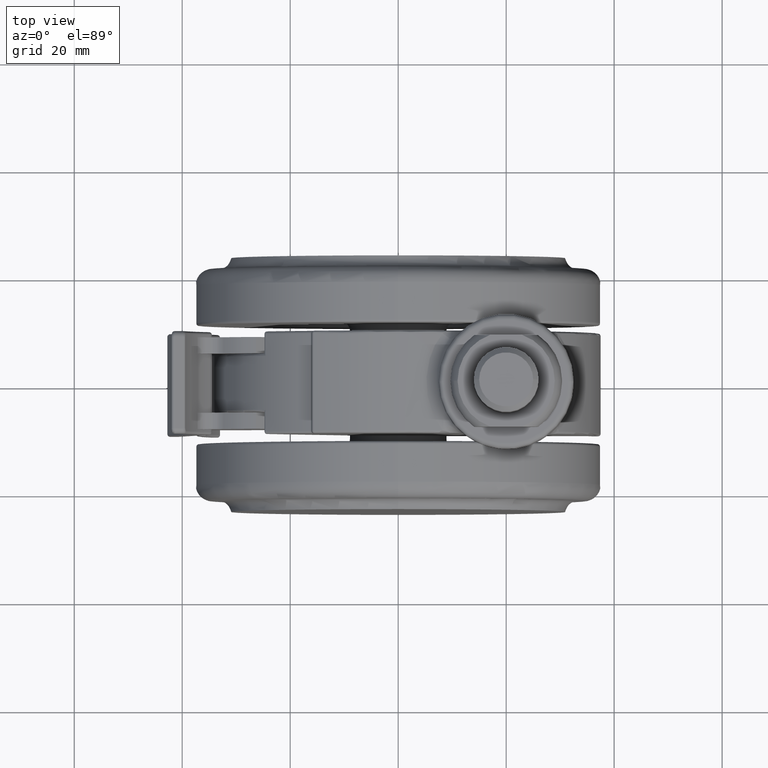
[diagram: clean part render]
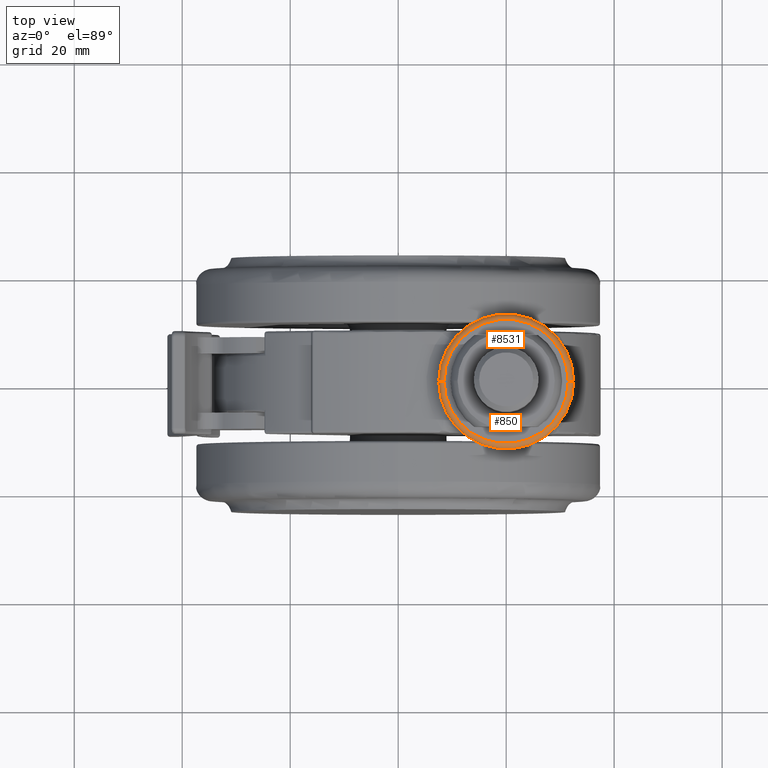
[diagram: same view with one multi-face feature highlighted, each face labeled with its STEP entity id]
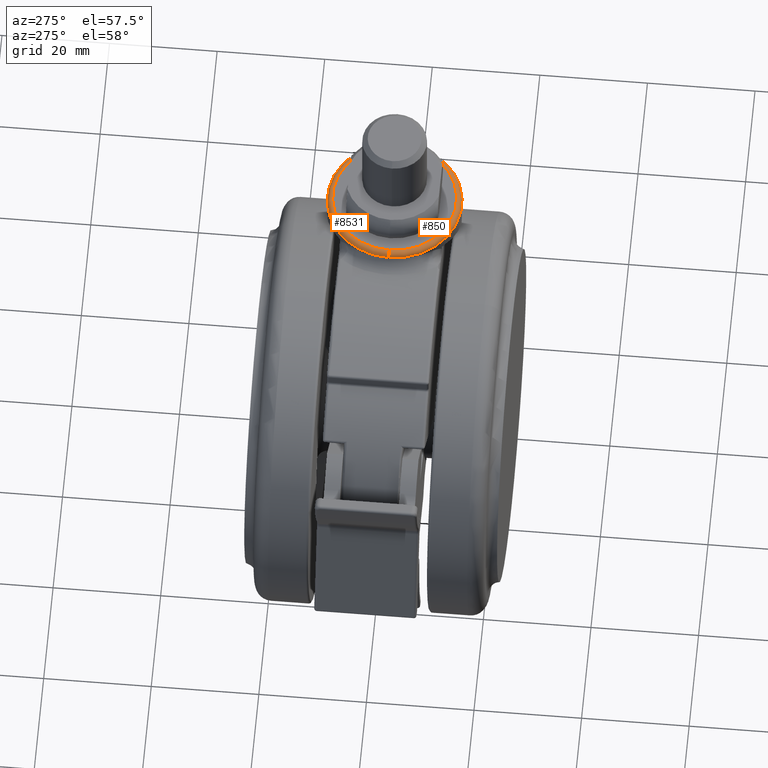
[diagram: same view with one multi-face feature highlighted, each face labeled with its STEP entity id]
A machine part, top view. The highlighted faces form ONE feature: a constant-radius fillet chain: 2 tangent blend faces with common blend radius 1 mm. The faces share edges in the B-rep.
A second angle (auxiliary view) of the same feature is appended — it is thin or edge-on in the first view.
Their STEP definitions:
[1] entity #8531 (Torus):
#148 = TOROIDAL_SURFACE ( 'NONE', #8669, 11.50000000000000000, 1.000000000000000000 ) ;
#440 = EDGE_LOOP ( 'NONE', ( #6576, #4514, #7833, #763 ) ) ;
#763 = ORIENTED_EDGE ( 'NONE', *, *, #5932, .F. ) ;
#789 = CIRCLE ( 'NONE', #6952, 12.50000000000000000 ) ;
#793 = CIRCLE ( 'NONE', #6805, 1.000000000000000900 ) ;
#1851 = DIRECTION ( 'NONE',  ( 0.0000000000000000000, 0.0000000000000000000, 1.000000000000000000 ) ) ;
#1945 = FACE_OUTER_BOUND ( 'NONE', #440, .T. ) ;
#2128 = DIRECTION ( 'NONE',  ( 0.0000000000000000000, 0.0000000000000000000, 1.000000000000000000 ) ) ;
#2532 = DIRECTION ( 'NONE',  ( 1.000000000000000000, 0.0000000000000000000, 0.0000000000000000000 ) ) ;
#2652 = EDGE_CURVE ( 'NONE', #5778, #5216, #789, .T. ) ;
#2663 = CARTESIAN_POINT ( 'NONE',  ( 12.50000000000000000, 2.842170943040399500E-014, -1.000000000000000000 ) ) ;
#2838 = DIRECTION ( 'NONE',  ( 1.224646799147353200E-016, 1.000000000000000000, -0.0000000000000000000 ) ) ;
#3109 = VERTEX_POINT ( 'NONE', #3531 ) ;
#3192 = CARTESIAN_POINT ( 'NONE',  ( 11.50000000000000000, 2.842170943040399500E-014, -1.000000000000000000 ) ) ;
#3244 = DIRECTION ( 'NONE',  ( -0.0000000000000000000, -0.0000000000000000000, -1.000000000000000000 ) ) ;
#3531 = CARTESIAN_POINT ( 'NONE',  ( -11.50000000000000000, 2.989128558938082300E-014, 0.0000000000000000000 ) ) ;
#3892 = DIRECTION ( 'NONE',  ( 0.0000000000000000000, 0.0000000000000000000, -1.000000000000000000 ) ) ;
#4353 = CIRCLE ( 'NONE', #8295, 1.000000000000000000 ) ;
#4479 = VERTEX_POINT ( 'NONE', #6114 ) ;
#4514 = ORIENTED_EDGE ( 'NONE', *, *, #6186, .T. ) ;
#5216 = VERTEX_POINT ( 'NONE', #2663 ) ;
#5449 = CIRCLE ( 'NONE', #8496, 11.50000000000000000 ) ;
#5778 = VERTEX_POINT ( 'NONE', #8546 ) ;
#5872 = CARTESIAN_POINT ( 'NONE',  ( 0.0000000000000000000, 2.842170943040399500E-014, -1.000000000000000000 ) ) ;
#5932 = EDGE_CURVE ( 'NONE', #5216, #4479, #4353, .T. ) ;
#6114 = CARTESIAN_POINT ( 'NONE',  ( 11.50000000000000000, 2.842170943040399500E-014, 0.0000000000000000000 ) ) ;
#6182 = CARTESIAN_POINT ( 'NONE',  ( 0.0000000000000000000, 2.842170943040399500E-014, 0.0000000000000000000 ) ) ;
#6186 = EDGE_CURVE ( 'NONE', #5778, #3109, #793, .T. ) ;
#6576 = ORIENTED_EDGE ( 'NONE', *, *, #2652, .F. ) ;
#6805 = AXIS2_PLACEMENT_3D ( 'NONE', #6893, #2838, #7537 ) ;
#6868 = DIRECTION ( 'NONE',  ( 1.000000000000000000, 0.0000000000000000000, 0.0000000000000000000 ) ) ;
#6893 = CARTESIAN_POINT ( 'NONE',  ( -11.50000000000000000, 2.983005324942345500E-014, -1.000000000000000000 ) ) ;
#6952 = AXIS2_PLACEMENT_3D ( 'NONE', #7284, #3244, #7928 ) ;
#7284 = CARTESIAN_POINT ( 'NONE',  ( 0.0000000000000000000, 2.842170943040399500E-014, -1.000000000000000000 ) ) ;
#7537 = DIRECTION ( 'NONE',  ( -1.000000000000000000, 1.224646799147349500E-016, 0.0000000000000000000 ) ) ;
#7833 = ORIENTED_EDGE ( 'NONE', *, *, #8746, .F. ) ;
#7871 = DIRECTION ( 'NONE',  ( 0.0000000000000000000, -1.000000000000000000, 0.0000000000000000000 ) ) ;
#7928 = DIRECTION ( 'NONE',  ( 1.000000000000000000, 0.0000000000000000000, 0.0000000000000000000 ) ) ;
#8295 = AXIS2_PLACEMENT_3D ( 'NONE', #3192, #7871, #3892 ) ;
#8496 = AXIS2_PLACEMENT_3D ( 'NONE', #6182, #2128, #6868 ) ;
#8531 = ADVANCED_FACE ( 'NONE', ( #1945 ), #148, .T. ) ;
#8546 = CARTESIAN_POINT ( 'NONE',  ( -12.50000000000000000, 2.995251792933819000E-014, -1.000000000000000000 ) ) ;
#8669 = AXIS2_PLACEMENT_3D ( 'NONE', #5872, #1851, #2532 ) ;
#8746 = EDGE_CURVE ( 'NONE', #4479, #3109, #5449, .T. ) ;
[2] entity #850 (Torus):
#793 = CIRCLE ( 'NONE', #6805, 1.000000000000000900 ) ;
#850 = ADVANCED_FACE ( 'NONE', ( #4569 ), #2746, .T. ) ;
#898 = DIRECTION ( 'NONE',  ( 0.0000000000000000000, 0.0000000000000000000, 1.000000000000000000 ) ) ;
#1880 = DIRECTION ( 'NONE',  ( -0.0000000000000000000, -0.0000000000000000000, -1.000000000000000000 ) ) ;
#2663 = CARTESIAN_POINT ( 'NONE',  ( 12.50000000000000000, 2.842170943040399500E-014, -1.000000000000000000 ) ) ;
#2679 = DIRECTION ( 'NONE',  ( 0.0000000000000000000, 0.0000000000000000000, 1.000000000000000000 ) ) ;
#2746 = TOROIDAL_SURFACE ( 'NONE', #4253, 11.50000000000000000, 1.000000000000000000 ) ;
#2790 = EDGE_LOOP ( 'NONE', ( #6811, #5640, #6048, #3108 ) ) ;
#2838 = DIRECTION ( 'NONE',  ( 1.224646799147353200E-016, 1.000000000000000000, -0.0000000000000000000 ) ) ;
#3108 = ORIENTED_EDGE ( 'NONE', *, *, #8653, .F. ) ;
#3109 = VERTEX_POINT ( 'NONE', #3531 ) ;
#3192 = CARTESIAN_POINT ( 'NONE',  ( 11.50000000000000000, 2.842170943040399500E-014, -1.000000000000000000 ) ) ;
#3531 = CARTESIAN_POINT ( 'NONE',  ( -11.50000000000000000, 2.989128558938082300E-014, 0.0000000000000000000 ) ) ;
#3892 = DIRECTION ( 'NONE',  ( 0.0000000000000000000, 0.0000000000000000000, -1.000000000000000000 ) ) ;
#4033 = AXIS2_PLACEMENT_3D ( 'NONE', #6744, #2679, #7401 ) ;
#4161 = DIRECTION ( 'NONE',  ( 1.000000000000000000, 0.0000000000000000000, 0.0000000000000000000 ) ) ;
#4253 = AXIS2_PLACEMENT_3D ( 'NONE', #4311, #898, #4161 ) ;
#4311 = CARTESIAN_POINT ( 'NONE',  ( 0.0000000000000000000, 2.842170943040399500E-014, -1.000000000000000000 ) ) ;
#4353 = CIRCLE ( 'NONE', #8295, 1.000000000000000000 ) ;
#4479 = VERTEX_POINT ( 'NONE', #6114 ) ;
#4569 = FACE_OUTER_BOUND ( 'NONE', #2790, .T. ) ;
#4716 = CIRCLE ( 'NONE', #4033, 11.50000000000000000 ) ;
#5216 = VERTEX_POINT ( 'NONE', #2663 ) ;
#5640 = ORIENTED_EDGE ( 'NONE', *, *, #8560, .F. ) ;
#5778 = VERTEX_POINT ( 'NONE', #8546 ) ;
#5925 = CARTESIAN_POINT ( 'NONE',  ( 0.0000000000000000000, 2.842170943040399500E-014, -1.000000000000000000 ) ) ;
#5932 = EDGE_CURVE ( 'NONE', #5216, #4479, #4353, .T. ) ;
#6048 = ORIENTED_EDGE ( 'NONE', *, *, #5932, .T. ) ;
#6114 = CARTESIAN_POINT ( 'NONE',  ( 11.50000000000000000, 2.842170943040399500E-014, 0.0000000000000000000 ) ) ;
#6186 = EDGE_CURVE ( 'NONE', #5778, #3109, #793, .T. ) ;
#6630 = DIRECTION ( 'NONE',  ( 1.000000000000000000, 0.0000000000000000000, 0.0000000000000000000 ) ) ;
#6744 = CARTESIAN_POINT ( 'NONE',  ( 0.0000000000000000000, 2.842170943040399500E-014, 0.0000000000000000000 ) ) ;
#6805 = AXIS2_PLACEMENT_3D ( 'NONE', #6893, #2838, #7537 ) ;
#6811 = ORIENTED_EDGE ( 'NONE', *, *, #6186, .F. ) ;
#6893 = CARTESIAN_POINT ( 'NONE',  ( -11.50000000000000000, 2.983005324942345500E-014, -1.000000000000000000 ) ) ;
#7132 = CIRCLE ( 'NONE', #7759, 12.50000000000000000 ) ;
#7401 = DIRECTION ( 'NONE',  ( 1.000000000000000000, 0.0000000000000000000, 0.0000000000000000000 ) ) ;
#7537 = DIRECTION ( 'NONE',  ( -1.000000000000000000, 1.224646799147349500E-016, 0.0000000000000000000 ) ) ;
#7759 = AXIS2_PLACEMENT_3D ( 'NONE', #5925, #1880, #6630 ) ;
#7871 = DIRECTION ( 'NONE',  ( 0.0000000000000000000, -1.000000000000000000, 0.0000000000000000000 ) ) ;
#8295 = AXIS2_PLACEMENT_3D ( 'NONE', #3192, #7871, #3892 ) ;
#8546 = CARTESIAN_POINT ( 'NONE',  ( -12.50000000000000000, 2.995251792933819000E-014, -1.000000000000000000 ) ) ;
#8560 = EDGE_CURVE ( 'NONE', #5216, #5778, #7132, .T. ) ;
#8653 = EDGE_CURVE ( 'NONE', #3109, #4479, #4716, .T. ) ;